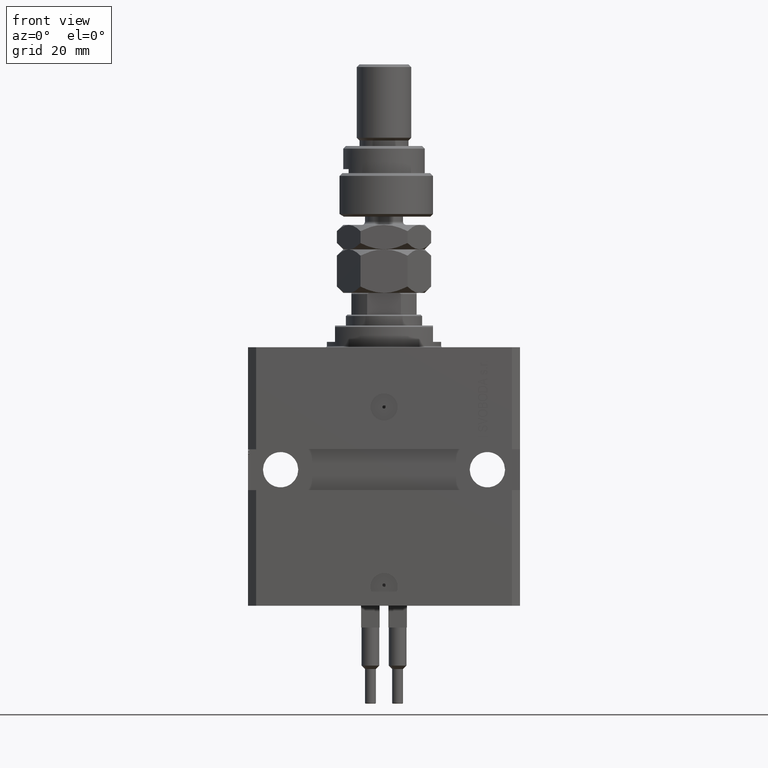
[diagram: clean part render]
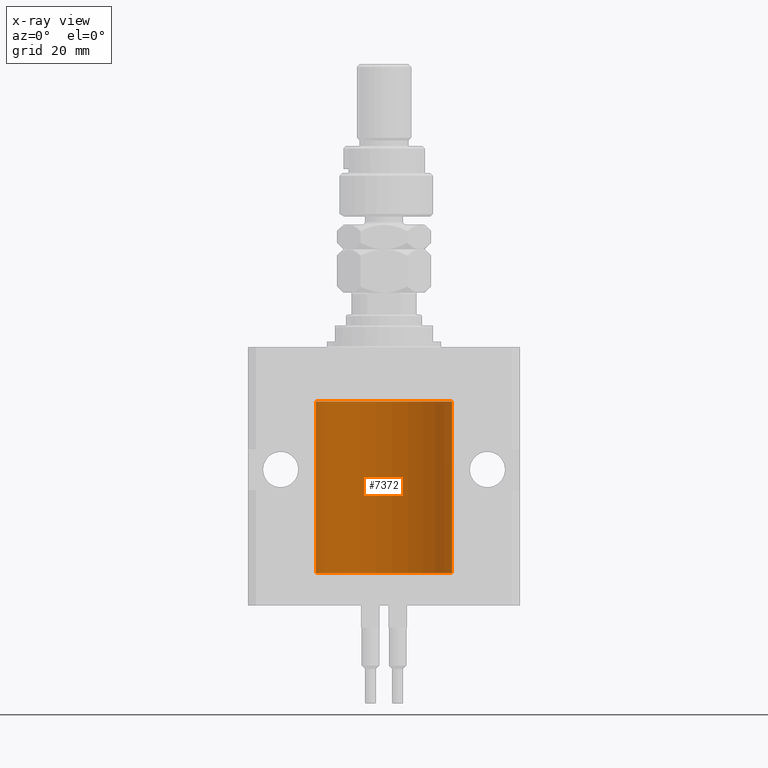
[diagram: x-ray — body ghosted, one internal face saturated and labeled with its STEP entity id]
A machine part, front view, then the same camera in x-ray: the body is ghosted and one INTERNAL B-rep face — a face not visible from any outside direction — is saturated and labeled: STEP entity #7372.
In plain terms, the highlighted cylindrical surface (partial cylindrical patch) has radius 25 mm, axis along (0, 0, 1).
Its self-contained STEP definition (entity closure, byte-faithful):
#381 = ORIENTED_EDGE ( 'NONE', *, *, #29377, .T. ) ;
#670 = CYLINDRICAL_SURFACE ( 'NONE', #22310, 25.00000000000000000 ) ;
#678 = CARTESIAN_POINT ( 'NONE',  ( -25.00000000000008171, 3.517566451145503275E-13, -25.62500000000326850 ) ) ;
#974 = B_SPLINE_CURVE_WITH_KNOTS ( 'NONE', 3,
 ( #50857, #35254, #42798, #18675, #14277, #18420, #3120, #18936, #31112, #35001, #7271, #22574 ),
 .UNSPECIFIED., .F., .F.,
 ( 4, 2, 2, 2, 2, 4 ),
 ( 1.760582088384631428E-18, 0.0002442639708601806493, 0.0004885279417203595639, 0.0009770558834406879029, 0.001465583825161016242, 0.001954111766881344581 ),
 .UNSPECIFIED. ) ;
#1032 = VERTEX_POINT ( 'NONE', #13959 ) ;
#1196 = CARTESIAN_POINT ( 'NONE',  ( -24.99812965334069403, 0.3150303239408847600, -24.45401901831676383 ) ) ;
#1266 = ORIENTED_EDGE ( 'NONE', *, *, #15925, .T. ) ;
#3120 = CARTESIAN_POINT ( 'NONE',  ( -24.99218772708281122, 0.6249420913990306747, -80.33671206966755562 ) ) ;
#5349 = CARTESIAN_POINT ( 'NONE',  ( -24.99711159039964414, 0.3843660423108813950, -24.50046193055078803 ) ) ;
#7271 = CARTESIAN_POINT ( 'NONE',  ( -24.99999999999998579, 0.1631672031814578039, -81.12499999999981526 ) ) ;
#7372 = ADVANCED_FACE ( 'NONE', ( #9224 ), #670, .F. ) ;
#7457 = DIRECTION ( 'NONE',  ( -0.000000000000000000, -0.000000000000000000, 1.000000000000000000 ) ) ;
#8281 = EDGE_CURVE ( 'NONE', #16562, #47249, #19623, .T. ) ;
#8515 = DIRECTION ( 'NONE',  ( -0.000000000000000000, -0.000000000000000000, 1.000000000000000000 ) ) ;
#9224 = FACE_OUTER_BOUND ( 'NONE', #49910, .T. ) ;
#10945 = EDGE_CURVE ( 'NONE', #39703, #41205, #17378, .T. ) ;
#11705 = ORIENTED_EDGE ( 'NONE', *, *, #46092, .F. ) ;
#12092 = DIRECTION ( 'NONE',  ( -0.000000000000000000, -0.000000000000000000, 1.000000000000000000 ) ) ;
#12114 = VERTEX_POINT ( 'NONE', #45413 ) ;
#12362 = CARTESIAN_POINT ( 'NONE',  ( -24.99999999999998934, 0.1631672031814573320, -25.62499999999985079 ) ) ;
#13959 = CARTESIAN_POINT ( 'NONE',  ( -25.00000000000000000, -2.172643007029407462E-14, -79.87500000000000000 ) ) ;
#14277 = CARTESIAN_POINT ( 'NONE',  ( -24.99711159039963704, 0.3843660423108775648, -80.00046193055077026 ) ) ;
#14281 = AXIS2_PLACEMENT_3D ( 'NONE', #17297, #16779, #28702 ) ;
#14898 = LINE ( 'NONE', #22685, #36849 ) ;
#15153 = CARTESIAN_POINT ( 'NONE',  ( 0.000000000000000000, 0.000000000000000000, -83.09999999999999432 ) ) ;
#15329 = VERTEX_POINT ( 'NONE', #29187 ) ;
#15330 = VECTOR ( 'NONE', #8515, 1000.000000000000000 ) ;
#15720 = AXIS2_PLACEMENT_3D ( 'NONE', #15153, #30968, #46806 ) ;
#15925 = EDGE_CURVE ( 'NONE', #39703, #15329, #50531, .T. ) ;
#16562 = VERTEX_POINT ( 'NONE', #37671 ) ;
#16779 = DIRECTION ( 'NONE',  ( 0.000000000000000000, 0.000000000000000000, 1.000000000000000000 ) ) ;
#16800 = CARTESIAN_POINT ( 'NONE',  ( -25.00000000000000000, 3.061616997868383043E-15, -20.00000000000000355 ) ) ;
#17258 = CARTESIAN_POINT ( 'NONE',  ( 0.000000000000000000, 0.000000000000000000, -83.09999999999999432 ) ) ;
#17297 = CARTESIAN_POINT ( 'NONE',  ( 0.000000000000000000, 0.000000000000000000, -20.00000000000000355 ) ) ;
#17378 = CIRCLE ( 'NONE', #15720, 25.00000000000000000 ) ;
#18420 = CARTESIAN_POINT ( 'NONE',  ( -24.99405295648007908, 0.5573304927633301320, -80.17348832933667779 ) ) ;
#18675 = CARTESIAN_POINT ( 'NONE',  ( -24.99812965334069759, 0.3150303239408748790, -79.95401901831677094 ) ) ;
#18936 = CARTESIAN_POINT ( 'NONE',  ( -24.99218483271614843, 0.6250578298876484640, -80.66284432778144264 ) ) ;
#19623 = B_SPLINE_CURVE_WITH_KNOTS ( 'NONE', 3,
 ( #24275, #44013, #20901, #1196, #5349, #32819, #47900, #48409, #28935, #25050, #12362, #678 ),
 .UNSPECIFIED., .F., .F.,
 ( 4, 2, 2, 2, 2, 4 ),
 ( 4.396951630244787669E-19, 0.0002442639708601663379, 0.0004885279417203322420, 0.0009770558834406712061, 0.001465583825161009953, 0.001954111766881348917 ),
 .UNSPECIFIED. ) ;
#20845 = EDGE_CURVE ( 'NONE', #1032, #47249, #26344, .T. ) ;
#20901 = CARTESIAN_POINT ( 'NONE',  ( -24.99957903978827289, 0.1636401650351867743, -24.39126259047981904 ) ) ;
#22310 = AXIS2_PLACEMENT_3D ( 'NONE', #17258, #12092, #43750 ) ;
#22574 = CARTESIAN_POINT ( 'NONE',  ( -25.00000000000008171, 3.517566579358498221E-13, -81.12500000000328271 ) ) ;
#22685 = CARTESIAN_POINT ( 'NONE',  ( -25.00000000000000000, 3.061616997868383043E-15, -83.09999999999999432 ) ) ;
#24275 = CARTESIAN_POINT ( 'NONE',  ( -25.00000000000000000, -9.603917560234690571E-15, -24.37500000000000000 ) ) ;
#25050 = CARTESIAN_POINT ( 'NONE',  ( -24.99815474281801997, 0.3253832813992120210, -25.55855609393753269 ) ) ;
#26344 = LINE ( 'NONE', #33860, #45443 ) ;
#27927 = ORIENTED_EDGE ( 'NONE', *, *, #8281, .T. ) ;
#28702 = DIRECTION ( 'NONE',  ( 1.000000000000000000, 0.000000000000000000, 0.000000000000000000 ) ) ;
#28935 = CARTESIAN_POINT ( 'NONE',  ( -24.99402840204668408, 0.5587119681668532012, -25.32511555871104747 ) ) ;
#29187 = CARTESIAN_POINT ( 'NONE',  ( 25.00000000000000000, 0.000000000000000000, -20.00000000000000355 ) ) ;
#29377 = EDGE_CURVE ( 'NONE', #15329, #36814, #36631, .T. ) ;
#30535 = CARTESIAN_POINT ( 'NONE',  ( 25.00000000000000000, 0.000000000000000000, -83.09999999999999432 ) ) ;
#30968 = DIRECTION ( 'NONE',  ( 0.000000000000000000, 0.000000000000000000, 1.000000000000000000 ) ) ;
#31112 = CARTESIAN_POINT ( 'NONE',  ( -24.99402840204668408, 0.5587119681668529791, -80.82511555871103326 ) ) ;
#32612 = LINE ( 'NONE', #36751, #15330 ) ;
#32802 = ORIENTED_EDGE ( 'NONE', *, *, #46440, .F. ) ;
#32819 = CARTESIAN_POINT ( 'NONE',  ( -24.99405295648008263, 0.5573304927633336847, -24.67348832933669200 ) ) ;
#33492 = CARTESIAN_POINT ( 'NONE',  ( -25.00000000000000000, 3.061616997868383043E-15, -83.09999999999999432 ) ) ;
#33860 = CARTESIAN_POINT ( 'NONE',  ( -25.00000000000000000, 3.061616997868383043E-15, -83.09999999999999432 ) ) ;
#35001 = CARTESIAN_POINT ( 'NONE',  ( -24.99815474281802352, 0.3253832813992149631, -81.05855609393753980 ) ) ;
#35254 = CARTESIAN_POINT ( 'NONE',  ( -25.00000000000000000, 0.08259386895070071344, -79.87500000000000000 ) ) ;
#36631 = CIRCLE ( 'NONE', #14281, 25.00000000000000000 ) ;
#36751 = CARTESIAN_POINT ( 'NONE',  ( -25.00000000000000000, 3.061616997868383043E-15, -83.09999999999999432 ) ) ;
#36764 = CARTESIAN_POINT ( 'NONE',  ( -25.00000000000008171, 3.517566451145503275E-13, -25.62500000000326850 ) ) ;
#36814 = VERTEX_POINT ( 'NONE', #16800 ) ;
#36849 = VECTOR ( 'NONE', #38486, 1000.000000000000000 ) ;
#37134 = ORIENTED_EDGE ( 'NONE', *, *, #20845, .F. ) ;
#37671 = CARTESIAN_POINT ( 'NONE',  ( -25.00000000000000000, -9.603917560234690571E-15, -24.37500000000000000 ) ) ;
#38486 = DIRECTION ( 'NONE',  ( -0.000000000000000000, -0.000000000000000000, 1.000000000000000000 ) ) ;
#39703 = VERTEX_POINT ( 'NONE', #46272 ) ;
#39934 = ORIENTED_EDGE ( 'NONE', *, *, #48996, .T. ) ;
#41205 = VERTEX_POINT ( 'NONE', #33492 ) ;
#41904 = DIRECTION ( 'NONE',  ( -0.000000000000000000, -0.000000000000000000, 1.000000000000000000 ) ) ;
#42798 = CARTESIAN_POINT ( 'NONE',  ( -24.99957903978828000, 0.1636401650351763382, -79.89126259047981193 ) ) ;
#43750 = DIRECTION ( 'NONE',  ( 1.000000000000000000, 0.000000000000000000, 0.000000000000000000 ) ) ;
#44013 = CARTESIAN_POINT ( 'NONE',  ( -25.00000000000001421, 0.08259386895071110790, -24.37500000000000000 ) ) ;
#45413 = CARTESIAN_POINT ( 'NONE',  ( -25.00000000000008171, 3.517566579358498221E-13, -81.12500000000328271 ) ) ;
#45443 = VECTOR ( 'NONE', #41904, 1000.000000000000000 ) ;
#46092 = EDGE_CURVE ( 'NONE', #16562, #36814, #32612, .T. ) ;
#46272 = CARTESIAN_POINT ( 'NONE',  ( 25.00000000000000000, 0.000000000000000000, -83.09999999999999432 ) ) ;
#46440 = EDGE_CURVE ( 'NONE', #41205, #12114, #14898, .T. ) ;
#46806 = DIRECTION ( 'NONE',  ( 1.000000000000000000, 0.000000000000000000, 0.000000000000000000 ) ) ;
#47249 = VERTEX_POINT ( 'NONE', #36764 ) ;
#47900 = CARTESIAN_POINT ( 'NONE',  ( -24.99218772708281477, 0.6249420913990341164, -24.83671206966754852 ) ) ;
#48409 = CARTESIAN_POINT ( 'NONE',  ( -24.99218483271614843, 0.6250578298876515726, -25.16284432778144975 ) ) ;
#48707 = VECTOR ( 'NONE', #7457, 1000.000000000000000 ) ;
#48996 = EDGE_CURVE ( 'NONE', #1032, #12114, #974, .T. ) ;
#49910 = EDGE_LOOP ( 'NONE', ( #32802, #50249, #1266, #381, #11705, #27927, #37134, #39934 ) ) ;
#50249 = ORIENTED_EDGE ( 'NONE', *, *, #10945, .F. ) ;
#50531 = LINE ( 'NONE', #30535, #48707 ) ;
#50857 = CARTESIAN_POINT ( 'NONE',  ( -25.00000000000000000, -2.172643007029407462E-14, -79.87500000000000000 ) ) ;